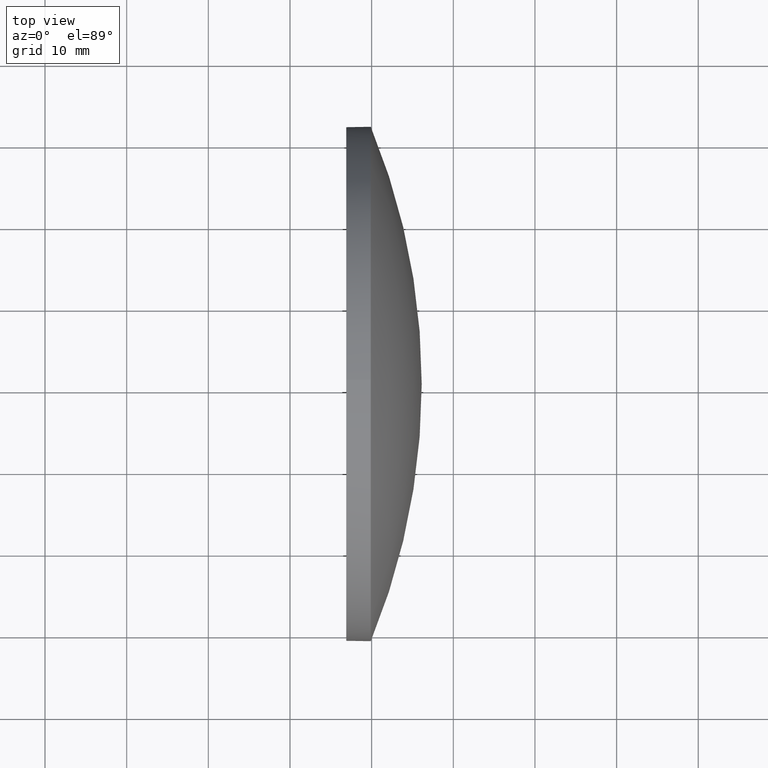
[diagram: clean part render]
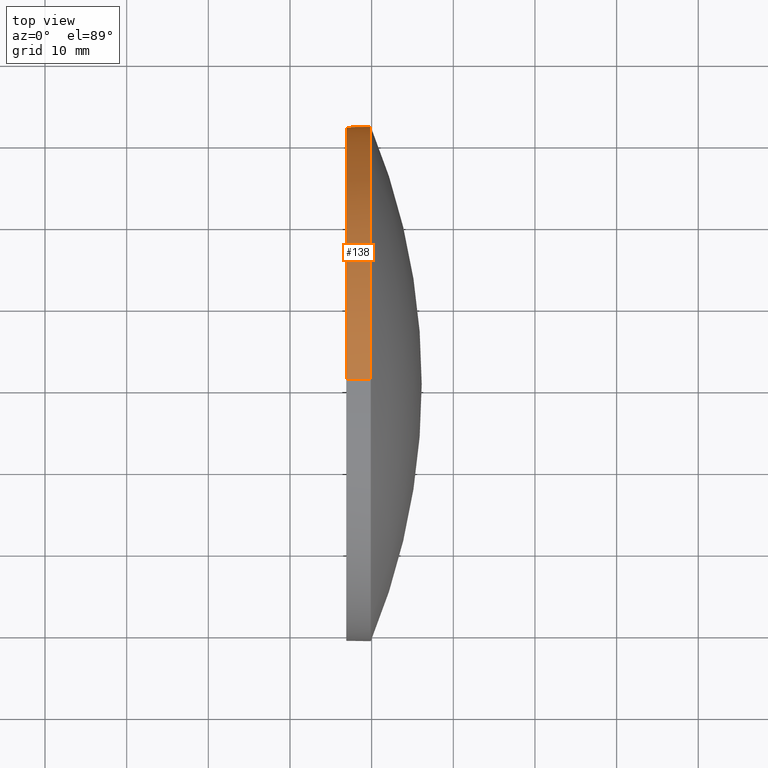
[diagram: same view with one face highlighted and labeled with its STEP entity id]
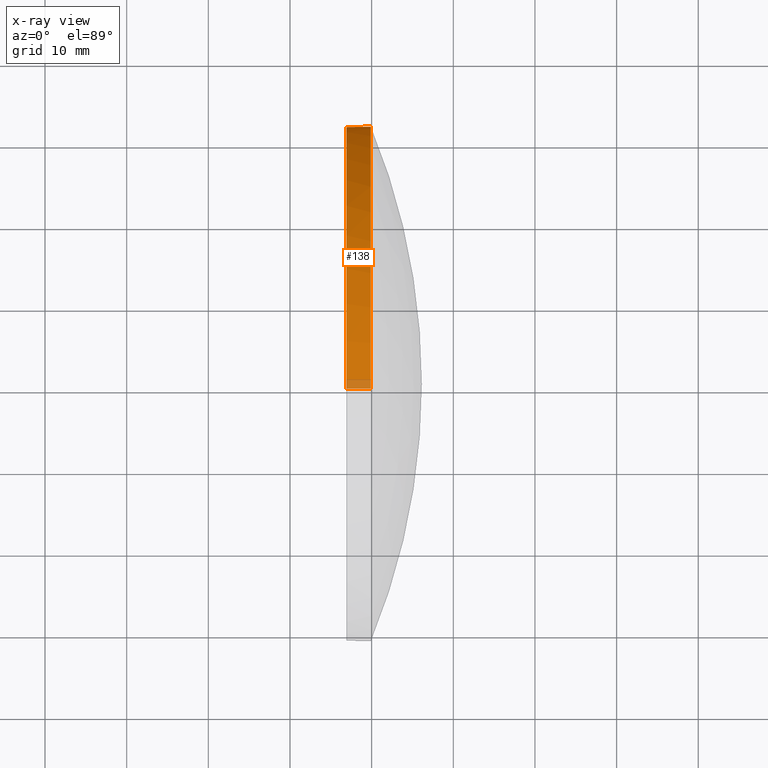
[diagram: x-ray of the same camera — body ghosted, the highlighted face saturated]
A machine part, top view. The second image highlights one B-rep face of the part: STEP entity #138.
The next image is the same camera in x-ray: the body ghosted, the highlighted face saturated — about 3% of this face is hidden behind the body in this view.
In plain terms, the highlighted cylindrical surface (partial cylindrical patch) has radius 31.5 mm, axis along (-1, -0, -0).
Its self-contained STEP definition (entity closure, byte-faithful):
#12 = EDGE_CURVE ( 'NONE', #130, #92, #111, .T. ) ;
#14 = CARTESIAN_POINT ( 'NONE',  ( 226.8933010013870400, 130.5185814569561000, 0.0000000000000000000 ) ) ;
#18 = LINE ( 'NONE', #47, #145 ) ;
#19 = CARTESIAN_POINT ( 'NONE',  ( 226.8933010013870400, 130.5185814569561000, -31.50000000000000000 ) ) ;
#20 = EDGE_CURVE ( 'NONE', #101, #92, #18, .T. ) ;
#30 = EDGE_CURVE ( 'NONE', #106, #130, #116, .T. ) ;
#38 = CARTESIAN_POINT ( 'NONE',  ( 218.1236667371545400, 130.5185814569561000, 0.0000000000000000000 ) ) ;
#40 = ORIENTED_EDGE ( 'NONE', *, *, #20, .T. ) ;
#45 = EDGE_CURVE ( 'NONE', #106, #63, #182, .T. ) ;
#47 = CARTESIAN_POINT ( 'NONE',  ( 218.1236667371545400, 130.5185814569561000, -31.50000000000000000 ) ) ;
#50 = AXIS2_PLACEMENT_3D ( 'NONE', #151, #175, #109 ) ;
#52 = VECTOR ( 'NONE', #168, 1000.000000000000000 ) ;
#53 = CARTESIAN_POINT ( 'NONE',  ( 229.8933010013870400, 130.5185814569561000, 31.50000000000000000 ) ) ;
#55 = CARTESIAN_POINT ( 'NONE',  ( 226.8933010013870400, 130.5185814569561000, 31.50000000000000000 ) ) ;
#56 = ORIENTED_EDGE ( 'NONE', *, *, #30, .F. ) ;
#63 = VERTEX_POINT ( 'NONE', #95 ) ;
#71 = ORIENTED_EDGE ( 'NONE', *, *, #45, .T. ) ;
#75 = AXIS2_PLACEMENT_3D ( 'NONE', #14, #115, #90 ) ;
#79 = CARTESIAN_POINT ( 'NONE',  ( 229.8933010013870400, 130.5185814569561000, -31.50000000000000000 ) ) ;
#85 = ORIENTED_EDGE ( 'NONE', *, *, #12, .F. ) ;
#90 = DIRECTION ( 'NONE',  ( 0.0000000000000000000, 0.0000000000000000000, 1.000000000000000000 ) ) ;
#92 = VERTEX_POINT ( 'NONE', #19 ) ;
#93 = DIRECTION ( 'NONE',  ( 0.0000000000000000000, 0.0000000000000000000, 1.000000000000000000 ) ) ;
#95 = CARTESIAN_POINT ( 'NONE',  ( 229.8933010013870400, 162.0185814569561300, 0.0000000000000000000 ) ) ;
#98 = CIRCLE ( 'NONE', #50, 31.50000000000000000 ) ;
#101 = VERTEX_POINT ( 'NONE', #79 ) ;
#103 = FACE_OUTER_BOUND ( 'NONE', #126, .T. ) ;
#105 = CARTESIAN_POINT ( 'NONE',  ( 229.8933010013870400, 130.5185814569561000, 0.0000000000000000000 ) ) ;
#106 = VERTEX_POINT ( 'NONE', #53 ) ;
#109 = DIRECTION ( 'NONE',  ( 0.0000000000000000000, 0.0000000000000000000, 1.000000000000000000 ) ) ;
#111 = CIRCLE ( 'NONE', #75, 31.50000000000000000 ) ;
#114 = DIRECTION ( 'NONE',  ( -1.000000000000000000, -0.0000000000000000000, -0.0000000000000000000 ) ) ;
#115 = DIRECTION ( 'NONE',  ( -1.000000000000000000, -0.0000000000000000000, -0.0000000000000000000 ) ) ;
#116 = LINE ( 'NONE', #137, #52 ) ;
#120 = CYLINDRICAL_SURFACE ( 'NONE', #158, 31.50000000000000000 ) ;
#126 = EDGE_LOOP ( 'NONE', ( #133, #40, #85, #56, #71 ) ) ;
#130 = VERTEX_POINT ( 'NONE', #55 ) ;
#133 = ORIENTED_EDGE ( 'NONE', *, *, #180, .T. ) ;
#137 = CARTESIAN_POINT ( 'NONE',  ( 218.1236667371545400, 130.5185814569561000, 31.50000000000000000 ) ) ;
#138 = ADVANCED_FACE ( 'NONE', ( #103 ), #120, .T. ) ;
#145 = VECTOR ( 'NONE', #114, 1000.000000000000000 ) ;
#151 = CARTESIAN_POINT ( 'NONE',  ( 229.8933010013870400, 130.5185814569561000, 0.0000000000000000000 ) ) ;
#152 = DIRECTION ( 'NONE',  ( -1.000000000000000000, -0.0000000000000000000, -0.0000000000000000000 ) ) ;
#156 = DIRECTION ( 'NONE',  ( 0.0000000000000000000, 0.0000000000000000000, 1.000000000000000000 ) ) ;
#158 = AXIS2_PLACEMENT_3D ( 'NONE', #38, #152, #156 ) ;
#162 = AXIS2_PLACEMENT_3D ( 'NONE', #105, #176, #93 ) ;
#168 = DIRECTION ( 'NONE',  ( -1.000000000000000000, -0.0000000000000000000, -0.0000000000000000000 ) ) ;
#175 = DIRECTION ( 'NONE',  ( -1.000000000000000000, -0.0000000000000000000, -0.0000000000000000000 ) ) ;
#176 = DIRECTION ( 'NONE',  ( -1.000000000000000000, -0.0000000000000000000, -0.0000000000000000000 ) ) ;
#180 = EDGE_CURVE ( 'NONE', #63, #101, #98, .T. ) ;
#182 = CIRCLE ( 'NONE', #162, 31.50000000000000000 ) ;